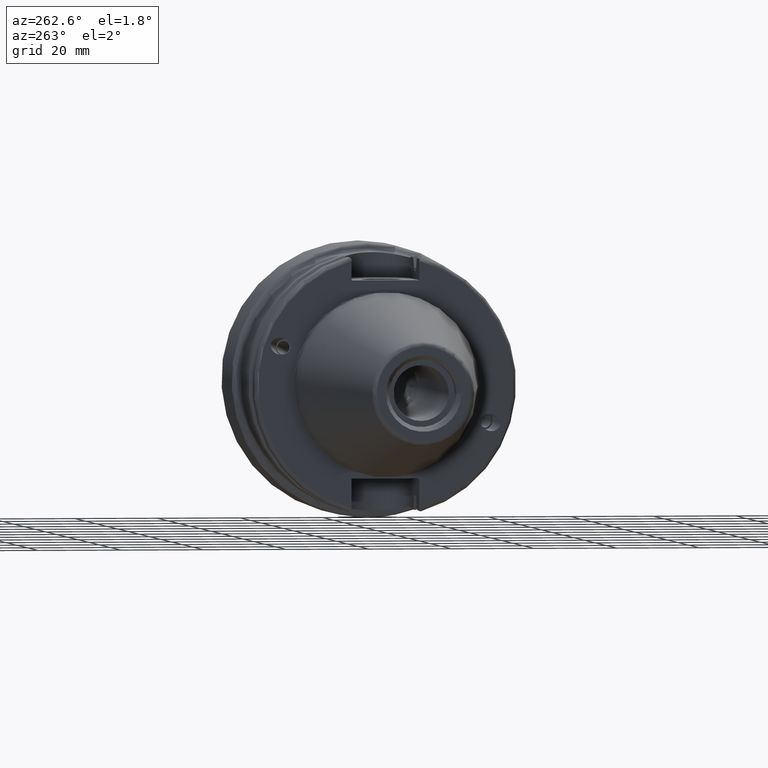
[diagram: clean part render]
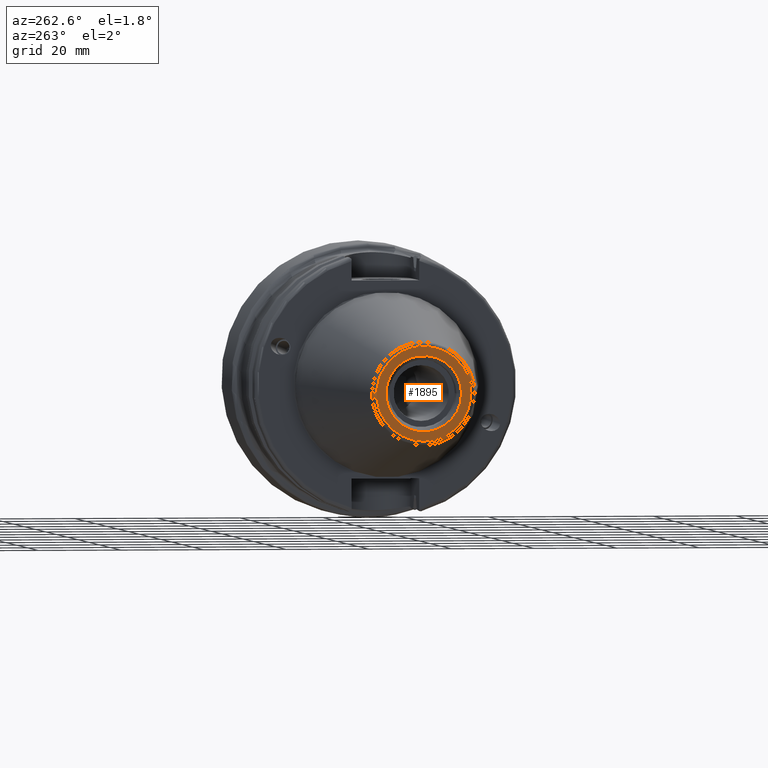
[diagram: same view with one face highlighted and labeled with its STEP entity id]
A machine part, auxiliary view. The second image highlights one B-rep face of the part: STEP entity #1895.
In plain terms, the highlighted planar face has unit normal (-1, 0, 0).
Its self-contained STEP definition (entity closure, byte-faithful):
#97=FACE_BOUND('',#568,.T.);
#118=PLANE('',#2157);
#449=FACE_OUTER_BOUND('',#567,.T.);
#567=EDGE_LOOP('',(#1659));
#568=EDGE_LOOP('',(#1660));
#712=CIRCLE('',#2156,11.4071305970304);
#713=CIRCLE('',#2158,9.15);
#908=VERTEX_POINT('',#3666);
#909=VERTEX_POINT('',#3670);
#1177=EDGE_CURVE('',#908,#908,#712,.T.);
#1178=EDGE_CURVE('',#909,#909,#713,.T.);
#1659=ORIENTED_EDGE('',*,*,#1177,.F.);
#1660=ORIENTED_EDGE('',*,*,#1178,.T.);
#1895=ADVANCED_FACE('',(#449,#97),#118,.T.);
#2156=AXIS2_PLACEMENT_3D('',#3668,#2698,#2699);
#2157=AXIS2_PLACEMENT_3D('',#3669,#2700,#2701);
#2158=AXIS2_PLACEMENT_3D('',#3671,#2702,#2703);
#2698=DIRECTION('center_axis',(1.,0.,0.));
#2699=DIRECTION('ref_axis',(0.,-1.,1.83697019872103E-16));
#2700=DIRECTION('center_axis',(-1.,0.,0.));
#2701=DIRECTION('ref_axis',(0.,0.,1.));
#2702=DIRECTION('center_axis',(1.,0.,0.));
#2703=DIRECTION('ref_axis',(0.,0.,-1.));
#3666=CARTESIAN_POINT('',(-68.25,-1.39697059731091E-15,11.4071305970304));
#3668=CARTESIAN_POINT('Origin',(-68.25,0.,0.));
#3669=CARTESIAN_POINT('Origin',(-68.25,12.271875,0.));
#3670=CARTESIAN_POINT('',(-68.25,-9.15,-1.12055182121983E-15));
#3671=CARTESIAN_POINT('Origin',(-68.25,0.,0.));